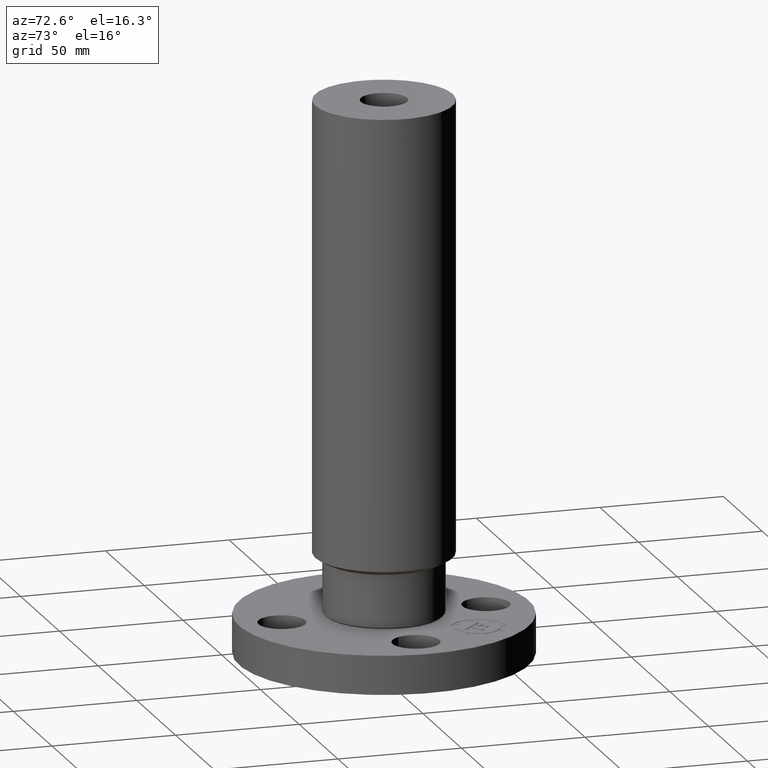
[diagram: clean part render]
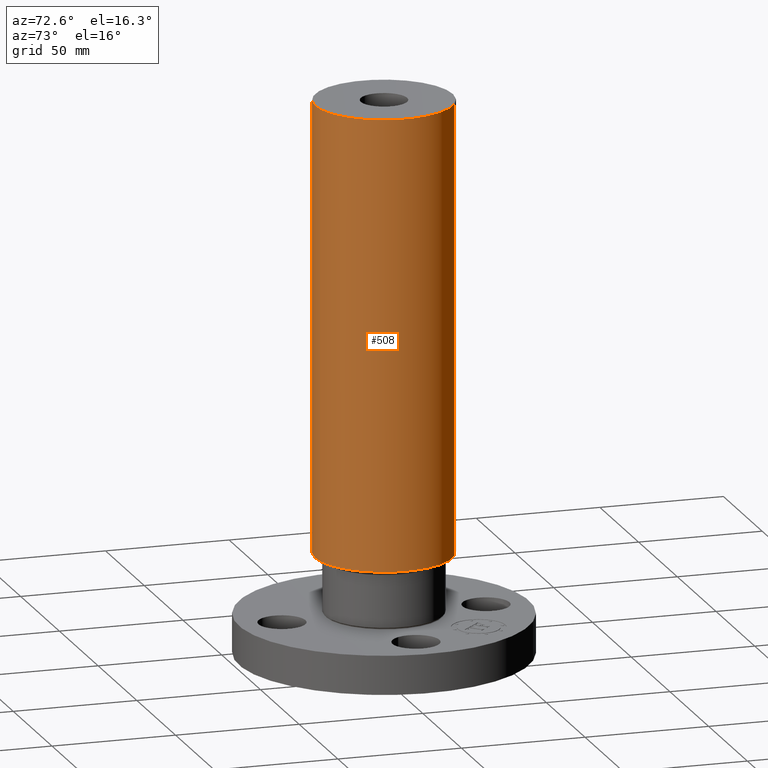
[diagram: same view with one face highlighted and labeled with its STEP entity id]
A machine part, auxiliary view. The second image highlights one B-rep face of the part: STEP entity #508.
In plain terms, the highlighted cylindrical surface (partial cylindrical patch) has radius 27.813 mm, axis along (0, 0, -1).
Its self-contained STEP definition (entity closure, byte-faithful):
#449=AXIS2_PLACEMENT_3D('Circle Axis2P3D',#447,#448,$) ;
#481=AXIS2_PLACEMENT_3D('Cylinder Axis2P3D',#478,#479,#480) ;
#492=AXIS2_PLACEMENT_3D('Circle Axis2P3D',#490,#491,$) ;
#444=CARTESIAN_POINT('Vertex',(0.524970964774,0.960952905274,1.58948929173)) ;
#447=CARTESIAN_POINT('Axis2P3D Location',(0.,0.,1.58948929173)) ;
#451=CARTESIAN_POINT('Vertex',(-0.524970964774,-0.960952905274,1.58948929173)) ;
#478=CARTESIAN_POINT('Axis2P3D Location',(0.,0.,4.25000000002)) ;
#483=CARTESIAN_POINT('Line Origine',(0.524970964774,0.960952905274,5.16974464588)) ;
#487=CARTESIAN_POINT('Vertex',(0.524970964774,0.960952905274,8.75000000004)) ;
#490=CARTESIAN_POINT('Axis2P3D Location',(0.,0.,8.75000000003)) ;
#494=CARTESIAN_POINT('Vertex',(-0.524970964774,-0.960952905274,8.75000000004)) ;
#497=CARTESIAN_POINT('Line Origine',(-0.524970964774,-0.960952905274,5.16974464588)) ;
#448=DIRECTION('Axis2P3D Direction',(-0.,0.,0.0393700787402)) ;
#479=DIRECTION('Axis2P3D Direction',(0.,0.,-0.0393700787402)) ;
#480=DIRECTION('Axis2P3D XDirection',(-0.0188750212049,-0.0345504945626,0.)) ;
#484=DIRECTION('Vector Direction',(0.,0.,-0.0393700787402)) ;
#491=DIRECTION('Axis2P3D Direction',(0.,0.,-0.0393700787402)) ;
#498=DIRECTION('Vector Direction',(0.,0.,-0.0393700787402)) ;
#485=VECTOR('Line Direction',#484,0.0393700787402) ;
#499=VECTOR('Line Direction',#498,0.0393700787402) ;
#503=ORIENTED_EDGE('',*,*,#453,.F.) ;
#504=ORIENTED_EDGE('',*,*,#489,.T.) ;
#505=ORIENTED_EDGE('',*,*,#496,.T.) ;
#506=ORIENTED_EDGE('',*,*,#501,.F.) ;
#508=ADVANCED_FACE('PartBody',(#507),#482,.T.) ;
#450=CIRCLE('generated circle',#449,1.095) ;
#493=CIRCLE('generated circle',#492,1.095) ;
#482=CYLINDRICAL_SURFACE('generated cylinder',#481,1.095) ;
#453=EDGE_CURVE('',#445,#452,#450,.F.) ;
#489=EDGE_CURVE('',#445,#488,#486,.F.) ;
#496=EDGE_CURVE('',#488,#495,#493,.T.) ;
#501=EDGE_CURVE('',#452,#495,#500,.F.) ;
#502=EDGE_LOOP('',(#503,#504,#505,#506)) ;
#507=FACE_OUTER_BOUND('',#502,.T.) ;
#486=LINE('Line',#483,#485) ;
#500=LINE('Line',#497,#499) ;
#445=VERTEX_POINT('',#444) ;
#452=VERTEX_POINT('',#451) ;
#488=VERTEX_POINT('',#487) ;
#495=VERTEX_POINT('',#494) ;